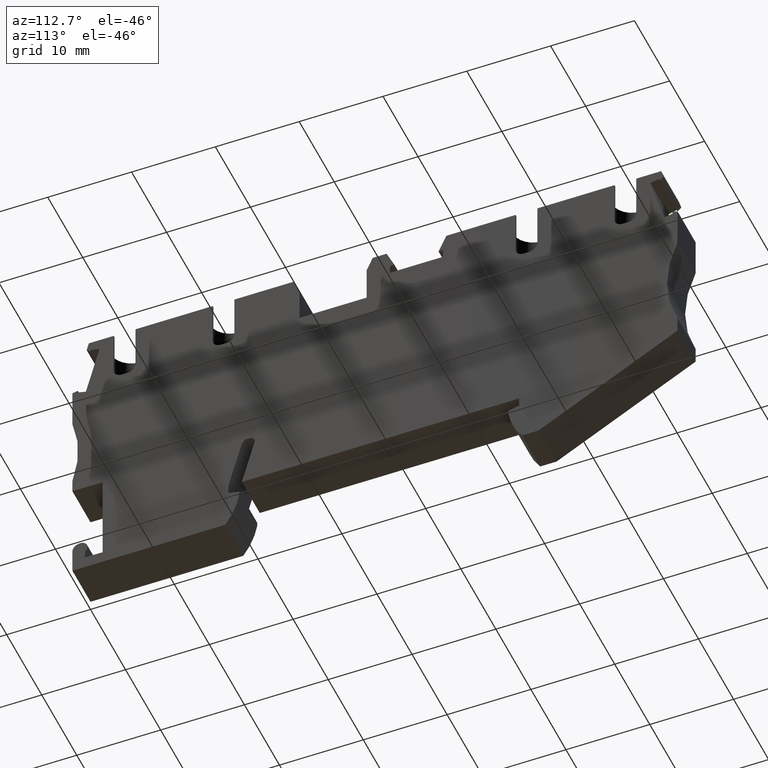
[diagram: clean part render]
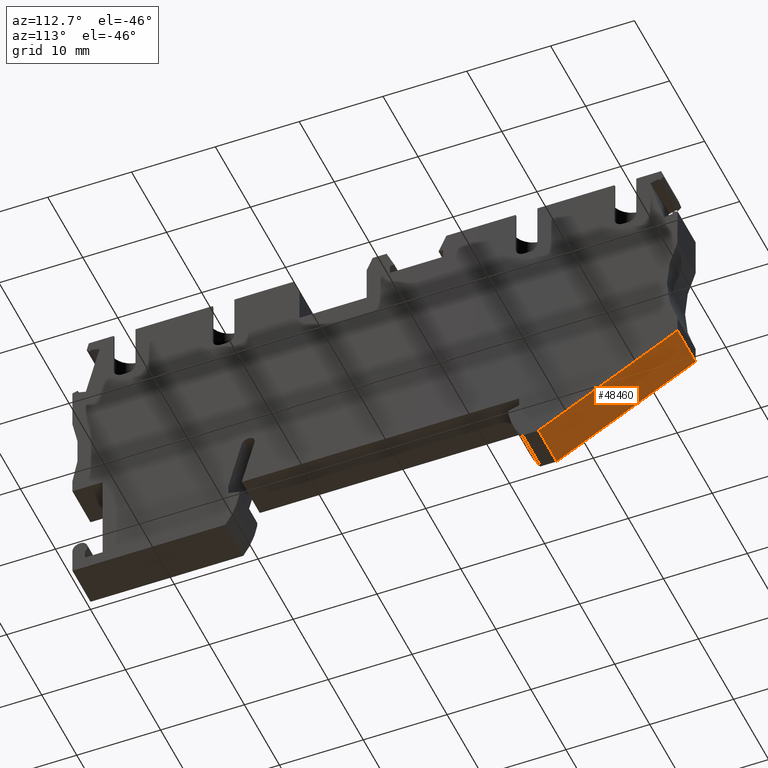
[diagram: same view with one face highlighted and labeled with its STEP entity id]
A machine part, auxiliary view. The second image highlights one B-rep face of the part: STEP entity #48460.
In plain terms, the highlighted planar face has unit normal (0, 0.4851, -0.8744).
Its self-contained STEP definition (entity closure, byte-faithful):
#1530=CARTESIAN_POINT('',(56.0528727208595,0.668268200050746,
-5.15000000000608));
#1540=VERTEX_POINT('',#1530);
#1570=CARTESIAN_POINT('',(-9.71208004152507E-12,-40.0891165681333,
-5.1500000000042));
#1580=DIRECTION('',(-0.808793328533599,-0.588092978804834,
-2.01906653361223E-13));
#1590=VECTOR('',#1580,1.);
#1600=LINE('',#1570,#1590);
#1610=CARTESIAN_POINT('',(71.3904313164973,11.8205739917616,
-5.14999999999995));
#1620=VERTEX_POINT('',#1610);
#1630=EDGE_CURVE('',#1620,#1540,#1600,.T.);
#47400=CARTESIAN_POINT('',(71.3904313164962,11.8205739917615,
5.45371119924155E-14));
#47410=VERTEX_POINT('',#47400);
#47510=CARTESIAN_POINT('',(71.3904313164961,11.8205739917615,
1.36472717726377E-11));
#47520=DIRECTION('',(-2.29274202385084E-13,-2.80078298176235E-14,1.));
#47530=VECTOR('',#47520,1.);
#47540=LINE('',#47510,#47530);
#47550=EDGE_CURVE('',#1620,#47410,#47540,.T.);
#48010=CARTESIAN_POINT('',(56.0528727208583,0.668268200050602,
-6.08071406551668E-12));
#48020=VERTEX_POINT('',#48010);
#48070=CARTESIAN_POINT('',(56.0528727208583,0.668268200050602,
9.81841337640002E-12));
#48080=DIRECTION('',(-2.29274202385084E-13,-2.80078298176235E-14,1.));
#48090=VECTOR('',#48080,1.);
#48100=LINE('',#48070,#48090);
#48110=EDGE_CURVE('',#1540,#48020,#48100,.T.);
#48300=CARTESIAN_POINT('',(56.4715373535565,0.972689270647364,
9.89450684023651E-12));
#48310=DIRECTION('',(0.588092978804834,-0.808793328533598,
1.12182002740548E-13));
#48320=DIRECTION('',(-0.808793328533599,-0.588092978804834,
-2.01906653361223E-13));
#48330=AXIS2_PLACEMENT_3D('',#48300,#48310,#48320);
#48340=PLANE('',#48330);
#48350=ORIENTED_EDGE('',*,*,#47550,.T.);
#48360=ORIENTED_EDGE('',*,*,#1630,.F.);
#48370=ORIENTED_EDGE('',*,*,#48110,.F.);
#48380=CARTESIAN_POINT('',(-1.08928421838083E-11,-40.0891165681335,
-4.20278986929409E-12));
#48390=DIRECTION('',(-0.808793328533599,-0.588092978804834,
-2.01906653361223E-13));
#48400=VECTOR('',#48390,1.);
#48410=LINE('',#48380,#48400);
#48420=EDGE_CURVE('',#47410,#48020,#48410,.T.);
#48430=ORIENTED_EDGE('',*,*,#48420,.T.);
#48440=EDGE_LOOP('',(#48430,#48370,#48360,#48350));
#48450=FACE_OUTER_BOUND('',#48440,.T.);
#48460=ADVANCED_FACE('',(#48450),#48340,.T.);